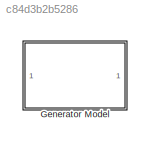
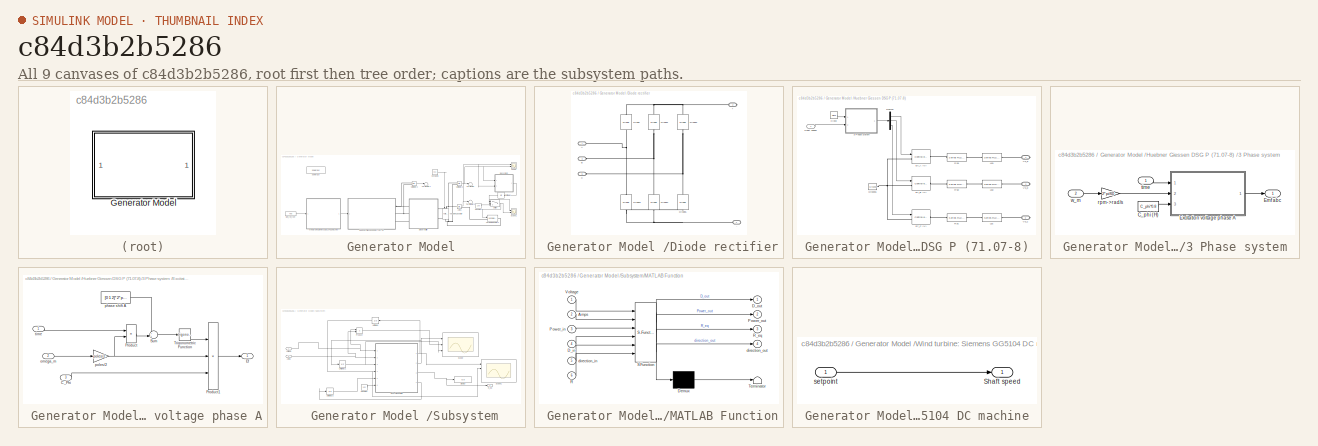
[diagram: thumbnail index - all 9 canvases of the model, root first then tree order]
MODEL slx_c84d3b2b5286
KIND model
CONFIG AbsTol = auto
CONFIG EnableMultiTasking = on
CONFIG FixedStep = 1e-6
CONFIG InitFcn = Rs=0.42;                \nLs=0.96e-3;            \nC_phi=92.1952e-3;     \npoles=8;               \nRload=15;
CONFIG MaxStep = 1e-6
CONFIG MinStep = auto
CONFIG RelTol = 1e-5
CONFIG SampleTimeConstraint = Unconstrained
CONFIG SolverName = ode45
CONFIG StartTime = 0.0
CONFIG StopTime = 2
WORKSPACE source: mxarray member
WORKSPACE D: Simulink.Parameter (value not decoded)
WORKSPACE Power_previous: Simulink.Parameter (value not decoded)
WORKSPACE R_eq: Simulink.Parameter (value not decoded)
WORKSPACE direction: Simulink.Parameter (value not decoded)
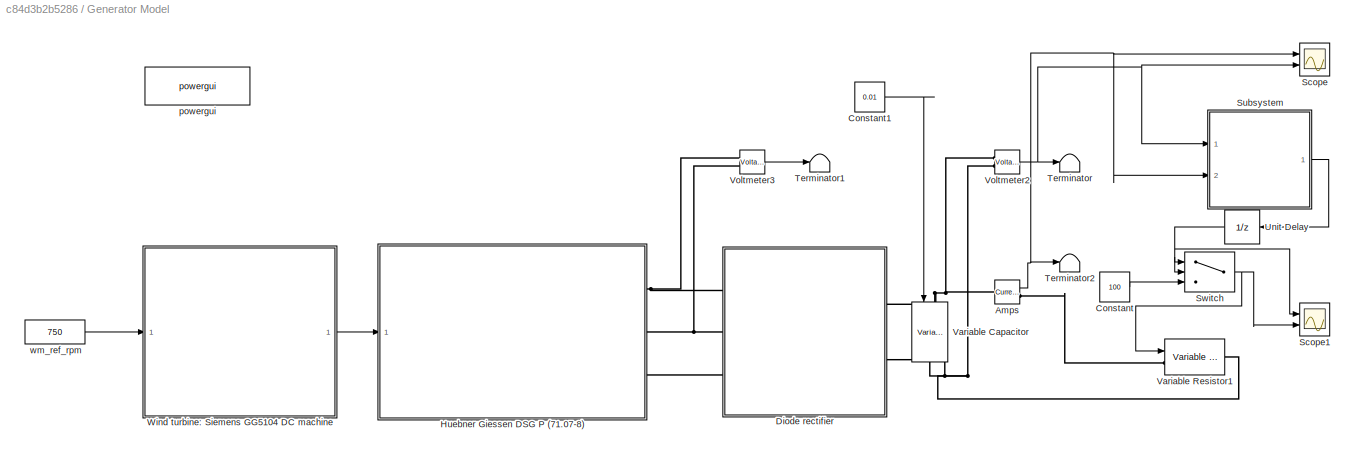
BLOCK [SubSystem]  Generator Model 
  Ports = []
BLOCK [Reference]  Generator Model /Amps  REF=spsCurrentMeasurementLib/Current Measurement
  Ports = [0, 1, 0, 0, 0, 1, 1]
  SourceBlock = spsCurrentMeasurementLib/Current Measurement
  SourceType = Current Measurement
  UserDataPersistent = on
BLOCK [Constant]  Generator Model /Constant
  Value = 100
BLOCK [Constant]  Generator Model /Constant1
  Value = 0.01
BLOCK [SubSystem]  Generator Model /Diode rectifier
  Ports = [0, 0, 0, 0, 0, 3, 2]
BLOCK [PMIOPort]  Generator Model /Diode rectifier/+
  NameLocation = top
  Port = 2
  Side = Right
BLOCK [PMIOPort]  Generator Model /Diode rectifier/-
  NameLocation = top
  Port = 4
  Side = Right
BLOCK [PMIOPort]  Generator Model /Diode rectifier/A
  Side = Left
BLOCK [PMIOPort]  Generator Model /Diode rectifier/B
  Port = 3
  Side = Left
BLOCK [PMIOPort]  Generator Model /Diode rectifier/C
  Port = 5
  Side = Left
BLOCK [Reference]  Generator Model /Diode rectifier/Diode  REF=spsDiodeLib/Diode
  NameLocation = right
  Ports = [0, 0, 0, 0, 0, 1, 1]
  SourceBlock = spsDiodeLib/Diode
  SourceType = Diode
BLOCK [Reference]  Generator Model /Diode rectifier/Diode1  REF=spsDiodeLib/Diode
  NameLocation = right
  Ports = [0, 0, 0, 0, 0, 1, 1]
  SourceBlock = spsDiodeLib/Diode
  SourceType = Diode
BLOCK [Reference]  Generator Model /Diode rectifier/Diode2  REF=spsDiodeLib/Diode
  NameLocation = right
  Ports = [0, 0, 0, 0, 0, 1, 1]
  SourceBlock = spsDiodeLib/Diode
  SourceType = Diode
BLOCK [Reference]  Generator Model /Diode rectifier/Diode3  REF=spsDiodeLib/Diode
  NameLocation = right
  Ports = [0, 0, 0, 0, 0, 1, 1]
  SourceBlock = spsDiodeLib/Diode
  SourceType = Diode
BLOCK [Reference]  Generator Model /Diode rectifier/Diode4  REF=spsDiodeLib/Diode
  NameLocation = right
  Ports = [0, 0, 0, 0, 0, 1, 1]
  SourceBlock = spsDiodeLib/Diode
  SourceType = Diode
BLOCK [Reference]  Generator Model /Diode rectifier/Diode5  REF=spsDiodeLib/Diode
  NameLocation = right
  Ports = [0, 0, 0, 0, 0, 1, 1]
  SourceBlock = spsDiodeLib/Diode
  SourceType = Diode
BLOCK [SubSystem]  Generator Model /Huebner Giessen DSG P (71.07-8) 
  Ports = [1, 0, 0, 0, 0, 0, 3]
BLOCK [SubSystem]  Generator Model /Huebner Giessen DSG P (71.07-8) /3 Phase system 
  Ports = [2, 1]
BLOCK [Constant]  Generator Model /Huebner Giessen DSG P (71.07-8) /3 Phase system /C_phi (H)
  Value = C_phi*0.8
  VectorParams1D = off
BLOCK [Outport]  Generator Model /Huebner Giessen DSG P (71.07-8) /3 Phase system /Emf abc 
BLOCK [SubSystem]  Generator Model /Huebner Giessen DSG P (71.07-8) /3 Phase system /Excitation voltage phase A
  Ports = [3, 1]
BLOCK [Inport]  Generator Model /Huebner Giessen DSG P (71.07-8) /3 Phase system /Excitation voltage phase A/C_Phi
  Port = 3
BLOCK [Outport]  Generator Model /Huebner Giessen DSG P (71.07-8) /3 Phase system /Excitation voltage phase A/Ef
BLOCK [Product]  Generator Model /Huebner Giessen DSG P (71.07-8) /3 Phase system /Excitation voltage phase A/Product
  Ports = [2, 1]
  RndMeth = Zero
BLOCK [Product]  Generator Model /Huebner Giessen DSG P (71.07-8) /3 Phase system /Excitation voltage phase A/Product1
  Inputs = 3
  Ports = [3, 1]
  RndMeth = Zero
BLOCK [Sum]  Generator Model /Huebner Giessen DSG P (71.07-8) /3 Phase system /Excitation voltage phase A/Sum
  Inputs = ++|
  Ports = [2, 1]
BLOCK [Trigonometry]  Generator Model /Huebner Giessen DSG P (71.07-8) /3 Phase system /Excitation voltage phase A/Trigonometric Function
  Ports = [1, 1]
BLOCK [Inport]  Generator Model /Huebner Giessen DSG P (71.07-8) /3 Phase system /Excitation voltage phase A/omega_m
  Port = 2
BLOCK [Constant]  Generator Model /Huebner Giessen DSG P (71.07-8) /3 Phase system /Excitation voltage phase A/phase shift A
  Value = [0 1 2]*2*pi/3
BLOCK [Gain]  Generator Model /Huebner Giessen DSG P (71.07-8) /3 Phase system /Excitation voltage phase A/poles//2
  Gain = poles/2
BLOCK [Inport]  Generator Model /Huebner Giessen DSG P (71.07-8) /3 Phase system /Excitation voltage phase A/time
BLOCK [Gain]  Generator Model /Huebner Giessen DSG P (71.07-8) /3 Phase system /rpm->rad//s
  Gain = 2*pi/60
BLOCK [Inport]  Generator Model /Huebner Giessen DSG P (71.07-8) /3 Phase system /time
BLOCK [Inport]  Generator Model /Huebner Giessen DSG P (71.07-8) /3 Phase system /w_m
  Port = 2
BLOCK [Clock]  Generator Model /Huebner Giessen DSG P (71.07-8) /Clock
BLOCK [Demux]  Generator Model /Huebner Giessen DSG P (71.07-8) /Demux
  Outputs = 3
  Ports = [1, 3]
BLOCK [Reference]  Generator Model /Huebner Giessen DSG P (71.07-8) /Ef_A (V)  REF=spsControlledVoltageSourceLib/Controlled Voltage Source
  Ports = [1, 0, 0, 0, 0, 1, 1]
  SourceBlock = spsControlledVoltageSourceLib/Controlled Voltage Source
  SourceType = Controlled Voltage Source
BLOCK [Reference]  Generator Model /Huebner Giessen DSG P (71.07-8) /Ef_B (V)  REF=spsControlledVoltageSourceLib/Controlled Voltage Source
  Ports = [1, 0, 0, 0, 0, 1, 1]
  SourceBlock = spsControlledVoltageSourceLib/Controlled Voltage Source
  SourceType = Controlled Voltage Source
BLOCK [Reference]  Generator Model /Huebner Giessen DSG P (71.07-8) /Ef_C (V)  REF=spsControlledVoltageSourceLib/Controlled Voltage Source
  Ports = [1, 0, 0, 0, 0, 1, 1]
  SourceBlock = spsControlledVoltageSourceLib/Controlled Voltage Source
  SourceType = Controlled Voltage Source
BLOCK [Reference]  Generator Model /Huebner Giessen DSG P (71.07-8) /Ground1  REF=spsGroundLib/Ground
  Ports = [0, 0, 0, 0, 0, 1]
  SourceBlock = spsGroundLib/Ground
  SourceType = Ground
BLOCK [Reference]  Generator Model /Huebner Giessen DSG P (71.07-8) /Lsa  REF=spsSeriesRLCBranchLib/Series RLC Branch
  Ports = [0, 0, 0, 0, 0, 1, 1]
  SourceBlock = spsSeriesRLCBranchLib/Series RLC Branch
  SourceType = Series RLC Branch
BLOCK [Reference]  Generator Model /Huebner Giessen DSG P (71.07-8) /Lsb  REF=spsSeriesRLCBranchLib/Series RLC Branch
  Ports = [0, 0, 0, 0, 0, 1, 1]
  SourceBlock = spsSeriesRLCBranchLib/Series RLC Branch
  SourceType = Series RLC Branch
BLOCK [Reference]  Generator Model /Huebner Giessen DSG P (71.07-8) /Lsc  REF=spsSeriesRLCBranchLib/Series RLC Branch
  Ports = [0, 0, 0, 0, 0, 1, 1]
  SourceBlock = spsSeriesRLCBranchLib/Series RLC Branch
  SourceType = Series RLC Branch
BLOCK [Reference]  Generator Model /Huebner Giessen DSG P (71.07-8) /Rsa  REF=spsSeriesRLCBranchLib/Series RLC Branch
  Ports = [0, 0, 0, 0, 0, 1, 1]
  SourceBlock = spsSeriesRLCBranchLib/Series RLC Branch
  SourceType = Series RLC Branch
BLOCK [Reference]  Generator Model /Huebner Giessen DSG P (71.07-8) /Rsb  REF=spsSeriesRLCBranchLib/Series RLC Branch
  Ports = [0, 0, 0, 0, 0, 1, 1]
  SourceBlock = spsSeriesRLCBranchLib/Series RLC Branch
  SourceType = Series RLC Branch
BLOCK [Reference]  Generator Model /Huebner Giessen DSG P (71.07-8) /Rsc  REF=spsSeriesRLCBranchLib/Series RLC Branch
  Ports = [0, 0, 0, 0, 0, 1, 1]
  SourceBlock = spsSeriesRLCBranchLib/Series RLC Branch
  SourceType = Series RLC Branch
BLOCK [Inport]  Generator Model /Huebner Giessen DSG P (71.07-8) /Shaft speed
BLOCK [PMIOPort]  Generator Model /Huebner Giessen DSG P (71.07-8) /Vs_a
  Side = Right
BLOCK [PMIOPort]  Generator Model /Huebner Giessen DSG P (71.07-8) /Vs_b
  Port = 2
  Side = Right
BLOCK [PMIOPort]  Generator Model /Huebner Giessen DSG P (71.07-8) /Vs_c
  Port = 3
  Side = Right
BLOCK [Scope]  Generator Model /Scope
  Floating = off
  NumInputPorts = 2
  Ports = [2]
  ScopeSpecificationString = Simulink.scopes.TimeScopeBlockCfg('CurrentConfiguration', extmgr.ConfigurationSet(extmgr.Configuration('Core','General UI',true),extmgr.Configuration('Core','Source UI',true),extmgr.Configuration('Sources','WiredSimulink',true),extmgr.Configuration('Visuals','Time Domain',true,'SerializedDisplays',{struct('MinYLimReal','-4.56236','MaxYLimReal','41.06125','YLabelReal','','MinYLimMag','0.00000','Max...<+1367ch>
BLOCK [Scope]  Generator Model /Scope1
  Floating = off
  NumInputPorts = 2
  Ports = [2]
  ScopeSpecificationString = Simulink.scopes.TimeScopeBlockCfg('CurrentConfiguration', extmgr.ConfigurationSet(extmgr.Configuration('Core','General UI',true),extmgr.Configuration('Core','Source UI',true),extmgr.Configuration('Sources','WiredSimulink',true),extmgr.Configuration('Visuals','Time Domain',true,'SerializedDisplays',{struct('MinYLimReal','-3.59637','MaxYLimReal','2.68855','YLabelReal','','MinYLimMag','0.00000','MaxY...<+1358ch>
BLOCK [SubSystem]  Generator Model /Subsystem
  Ports = [2, 1]
BLOCK [Inport]  Generator Model /Subsystem/Amps
  Port = 2
BLOCK [Constant]  Generator Model /Subsystem/Constant
  Value = 100
BLOCK [Display]  Generator Model /Subsystem/Display
  Decimation = 1
  Ports = [1]
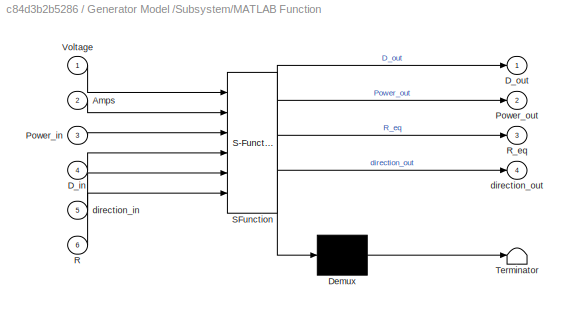
BLOCK [SubSystem]  Generator Model /Subsystem/MATLAB Function
  ErrorFcn = Stateflow.Translate.translate
  PermitHierarchicalResolution = ExplicitOnly
  Ports = [6, 4]
  SFBlockType = MATLAB Function
  SystemSampleTime = 0.01
  TreatAsAtomicUnit = on
BLOCK [Demux]  Generator Model /Subsystem/MATLAB Function/ Demux 
  Outputs = 1
  Ports = [1, 1]
BLOCK [S-Function]  Generator Model /Subsystem/MATLAB Function/ SFunction 
  EnableBusSupport = on
  FunctionName = sf_sfun
  PortCounts = [6 5]
  Ports = [6, 5]
  SFcnIsStateOwnerBlock = off
  SFunctionDeploymentMode = off
  Tag = Stateflow S-Function 2
BLOCK [Terminator]  Generator Model /Subsystem/MATLAB Function/ Terminator 
BLOCK [Inport]  Generator Model /Subsystem/MATLAB Function/Amps
  Port = 2
BLOCK [Inport]  Generator Model /Subsystem/MATLAB Function/D_in
  Port = 4
BLOCK [Outport]  Generator Model /Subsystem/MATLAB Function/D_out
BLOCK [Inport]  Generator Model /Subsystem/MATLAB Function/Power_in
  Port = 3
BLOCK [Outport]  Generator Model /Subsystem/MATLAB Function/Power_out
  Port = 2
BLOCK [Inport]  Generator Model /Subsystem/MATLAB Function/R
  Port = 6
BLOCK [Outport]  Generator Model /Subsystem/MATLAB Function/R_eq
  Port = 3
BLOCK [Inport]  Generator Model /Subsystem/MATLAB Function/Voltage
BLOCK [Inport]  Generator Model /Subsystem/MATLAB Function/direction_in
  Port = 5
BLOCK [Outport]  Generator Model /Subsystem/MATLAB Function/direction_out
  Port = 4
BLOCK [Product]  Generator Model /Subsystem/Product
  Ports = [2, 1]
BLOCK [Outport]  Generator Model /Subsystem/R_eq
BLOCK [Scope]  Generator Model /Subsystem/Scope
  Floating = off
  NumInputPorts = 3
  Ports = [3]
  ScopeSpecificationString = Simulink.scopes.TimeScopeBlockCfg('CurrentConfiguration', extmgr.ConfigurationSet(extmgr.Configuration('Core','General UI',true),extmgr.Configuration('Core','Source UI',true),extmgr.Configuration('Sources','WiredSimulink',true,'DataLoggingVariableName','ScopeData1'),extmgr.Configuration('Visuals','Time Domain',true,'SerializedDisplays',{struct('MinYLimReal','-52.45852','MaxYLimReal','472.12667','Y...<+1492ch>
BLOCK [Scope]  Generator Model /Subsystem/Scope1
  Floating = off
  NumInputPorts = 4
  Ports = [4]
  ScopeSpecificationString = Simulink.scopes.TimeScopeBlockCfg('CurrentConfiguration', extmgr.ConfigurationSet(extmgr.Configuration('Core','General UI',true),extmgr.Configuration('Core','Source UI',true),extmgr.Configuration('Sources','WiredSimulink',true,'DataLoggingVariableName','ScopeData2'),extmgr.Configuration('Visuals','Time Domain',true,'SerializedDisplays',{struct('MinYLimReal','-0.12625','MaxYLimReal','1.13625','YLab...<+1634ch>
BLOCK [UnitDelay]  Generator Model /Subsystem/Unit Delay
  HasFrameUpgradeWarning = on
  InitialCondition = 1
  NameLocation = top
  SampleTime = 0.001
BLOCK [UnitDelay]  Generator Model /Subsystem/Unit Delay1
  HasFrameUpgradeWarning = on
  SampleTime = 0.001
BLOCK [UnitDelay]  Generator Model /Subsystem/Unit Delay2
  HasFrameUpgradeWarning = on
  SampleTime = 0.001
BLOCK [Inport]  Generator Model /Subsystem/Voltage
BLOCK [Switch]  Generator Model /Switch
  Criteria = u2 > Threshold
  InputSameDT = off
  SaturateOnIntegerOverflow = off
BLOCK [Terminator]  Generator Model /Terminator
BLOCK [Terminator]  Generator Model /Terminator1
BLOCK [Terminator]  Generator Model /Terminator2
BLOCK [UnitDelay]  Generator Model /Unit Delay
  HasFrameUpgradeWarning = on
  NameLocation = top
  SampleTime = 0.01
BLOCK [Reference]  Generator Model /Variable Capacitor  REF=spsVariableCapacitorLib/Variable Capacitor
  NameLocation = left
  Ports = [1, 0, 0, 0, 0, 1, 1]
  SourceBlock = spsVariableCapacitorLib/Variable Capacitor
  SourceType = Variable Capacitor
BLOCK [Reference]  Generator Model /Variable Resistor1  REF=spsVariableResistorLib/Variable Resistor
  Ports = [1, 0, 0, 0, 0, 1, 1]
  SourceBlock = spsVariableResistorLib/Variable Resistor
  SourceType = Variable Resistor
BLOCK [Reference]  Generator Model /Voltmeter2  REF=spsVoltageMeasurementLib/Voltage Measurement
  Ports = [0, 1, 0, 0, 0, 2]
  SourceBlock = spsVoltageMeasurementLib/Voltage Measurement
  SourceType = Voltage Measurement
  UserDataPersistent = on
BLOCK [Reference]  Generator Model /Voltmeter3  REF=spsVoltageMeasurementLib/Voltage Measurement
  Ports = [0, 1, 0, 0, 0, 2]
  SourceBlock = spsVoltageMeasurementLib/Voltage Measurement
  SourceType = Voltage Measurement
  UserDataPersistent = on
BLOCK [SubSystem]  Generator Model /Wind turbine: Siemens GG5104 DC machine 
  Ports = [1, 1]
BLOCK [Outport]  Generator Model /Wind turbine: Siemens GG5104 DC machine /Shaft speed
BLOCK [Inport]  Generator Model /Wind turbine: Siemens GG5104 DC machine /setpoint
BLOCK [Reference]  Generator Model /powergui  REF=spspowerguiLib/powergui
  Ports = []
  Priority = 1
  SourceBlock = spspowerguiLib/powergui
  SourceType = PSB option menu block
BLOCK [Constant]  Generator Model /wm_ref_rpm
  Value = 750
NET  Generator Model /Amps:1 ->  Generator Model /Scope:1,  Generator Model /Subsystem:2,  Generator Model /Terminator2:1
LINE  Generator Model /Constant1:1 ->  Generator Model /Variable Capacitor:1
LINE  Generator Model /Constant:1 ->  Generator Model /Switch:3
LINE  Generator Model /Huebner Giessen DSG P (71.07-8) /3 Phase system /C_phi (H):1 ->  Generator Model /Huebner Giessen DSG P (71.07-8) /3 Phase system /Excitation voltage phase A:3
LINE  Generator Model /Huebner Giessen DSG P (71.07-8) /3 Phase system /Excitation voltage phase A/C_Phi:1 ->  Generator Model /Huebner Giessen DSG P (71.07-8) /3 Phase system /Excitation voltage phase A/Product1:3
LINE  Generator Model /Huebner Giessen DSG P (71.07-8) /3 Phase system /Excitation voltage phase A/Product1:1 ->  Generator Model /Huebner Giessen DSG P (71.07-8) /3 Phase system /Excitation voltage phase A/Ef:1
LINE  Generator Model /Huebner Giessen DSG P (71.07-8) /3 Phase system /Excitation voltage phase A/Product:1 ->  Generator Model /Huebner Giessen DSG P (71.07-8) /3 Phase system /Excitation voltage phase A/Sum:2
LINE  Generator Model /Huebner Giessen DSG P (71.07-8) /3 Phase system /Excitation voltage phase A/Sum:1 ->  Generator Model /Huebner Giessen DSG P (71.07-8) /3 Phase system /Excitation voltage phase A/Trigonometric Function:1
LINE  Generator Model /Huebner Giessen DSG P (71.07-8) /3 Phase system /Excitation voltage phase A/Trigonometric Function:1 ->  Generator Model /Huebner Giessen DSG P (71.07-8) /3 Phase system /Excitation voltage phase A/Product1:1
LINE  Generator Model /Huebner Giessen DSG P (71.07-8) /3 Phase system /Excitation voltage phase A/omega_m:1 ->  Generator Model /Huebner Giessen DSG P (71.07-8) /3 Phase system /Excitation voltage phase A/poles//2:1
LINE  Generator Model /Huebner Giessen DSG P (71.07-8) /3 Phase system /Excitation voltage phase A/phase shift A:1 ->  Generator Model /Huebner Giessen DSG P (71.07-8) /3 Phase system /Excitation voltage phase A/Sum:1
NET  Generator Model /Huebner Giessen DSG P (71.07-8) /3 Phase system /Excitation voltage phase A/poles//2:1 ->  Generator Model /Huebner Giessen DSG P (71.07-8) /3 Phase system /Excitation voltage phase A/Product1:2,  Generator Model /Huebner Giessen DSG P (71.07-8) /3 Phase system /Excitation voltage phase A/Product:2
LINE  Generator Model /Huebner Giessen DSG P (71.07-8) /3 Phase system /Excitation voltage phase A/time:1 ->  Generator Model /Huebner Giessen DSG P (71.07-8) /3 Phase system /Excitation voltage phase A/Product:1
LINE  Generator Model /Huebner Giessen DSG P (71.07-8) /3 Phase system /Excitation voltage phase A:1 ->  Generator Model /Huebner Giessen DSG P (71.07-8) /3 Phase system /Emf abc :1
LINE  Generator Model /Huebner Giessen DSG P (71.07-8) /3 Phase system /rpm->rad//s:1 ->  Generator Model /Huebner Giessen DSG P (71.07-8) /3 Phase system /Excitation voltage phase A:2
LINE  Generator Model /Huebner Giessen DSG P (71.07-8) /3 Phase system /time:1 ->  Generator Model /Huebner Giessen DSG P (71.07-8) /3 Phase system /Excitation voltage phase A:1
LINE  Generator Model /Huebner Giessen DSG P (71.07-8) /3 Phase system /w_m:1 ->  Generator Model /Huebner Giessen DSG P (71.07-8) /3 Phase system /rpm->rad//s:1
LINE  Generator Model /Huebner Giessen DSG P (71.07-8) /3 Phase system :1 ->  Generator Model /Huebner Giessen DSG P (71.07-8) /Demux:1
LINE  Generator Model /Huebner Giessen DSG P (71.07-8) /Clock:1 ->  Generator Model /Huebner Giessen DSG P (71.07-8) /3 Phase system :1
LINE  Generator Model /Huebner Giessen DSG P (71.07-8) /Demux:1 ->  Generator Model /Huebner Giessen DSG P (71.07-8) /Ef_A (V):1
LINE  Generator Model /Huebner Giessen DSG P (71.07-8) /Demux:2 ->  Generator Model /Huebner Giessen DSG P (71.07-8) /Ef_B (V):1
LINE  Generator Model /Huebner Giessen DSG P (71.07-8) /Demux:3 ->  Generator Model /Huebner Giessen DSG P (71.07-8) /Ef_C (V):1
LINE  Generator Model /Huebner Giessen DSG P (71.07-8) /Shaft speed:1 ->  Generator Model /Huebner Giessen DSG P (71.07-8) /3 Phase system :2
NET  Generator Model /Subsystem/Amps:1 ->  Generator Model /Subsystem/MATLAB Function:2,  Generator Model /Subsystem/Product:2
LINE  Generator Model /Subsystem/Constant:1 ->  Generator Model /Subsystem/MATLAB Function:6
NET  Generator Model /Subsystem/MATLAB Function:1 ->  Generator Model /Subsystem/Scope1:1,  Generator Model /Subsystem/Unit Delay:1
NET  Generator Model /Subsystem/MATLAB Function:2 ->  Generator Model /Subsystem/Scope:1,  Generator Model /Subsystem/Unit Delay1:1
NET  Generator Model /Subsystem/MATLAB Function:3 ->  Generator Model /Subsystem/Display:1,  Generator Model /Subsystem/R_eq:1
LINE  Generator Model /Subsystem/MATLAB Function:4 ->  Generator Model /Subsystem/Unit Delay2:1
LINE  Generator Model /Subsystem/Product:1 ->  Generator Model /Subsystem/Scope:2
NET  Generator Model /Subsystem/Unit Delay1:1 ->  Generator Model /Subsystem/MATLAB Function:3,  Generator Model /Subsystem/Scope:3
LINE  Generator Model /Subsystem/Unit Delay2:1 ->  Generator Model /Subsystem/MATLAB Function:5
NET  Generator Model /Subsystem/Unit Delay:1 ->  Generator Model /Subsystem/MATLAB Function:4,  Generator Model /Subsystem/Scope1:2
NET  Generator Model /Subsystem/Voltage:1 ->  Generator Model /Subsystem/MATLAB Function:1,  Generator Model /Subsystem/Product:1
LINE  Generator Model /Subsystem:1 ->  Generator Model /Unit Delay:1
NET  Generator Model /Switch:1 ->  Generator Model /Scope1:2,  Generator Model /Variable Resistor1:1
NET  Generator Model /Unit Delay:1 ->  Generator Model /Scope1:1,  Generator Model /Switch:1,  Generator Model /Switch:2
NET  Generator Model /Voltmeter2:1 ->  Generator Model /Scope:2,  Generator Model /Subsystem:1,  Generator Model /Terminator:1
LINE  Generator Model /Voltmeter3:1 ->  Generator Model /Terminator1:1
LINE  Generator Model /Wind turbine: Siemens GG5104 DC machine /setpoint:1 ->  Generator Model /Wind turbine: Siemens GG5104 DC machine /Shaft speed:1
LINE  Generator Model /Wind turbine: Siemens GG5104 DC machine :1 ->  Generator Model /Huebner Giessen DSG P (71.07-8) :1
LINE  Generator Model /wm_ref_rpm:1 ->  Generator Model /Wind turbine: Siemens GG5104 DC machine :1
PNET net1:  Generator Model /Amps:LConn1 --  Generator Model /Diode rectifier:RConn1 --  Generator Model /Variable Capacitor:LConn1 --  Generator Model /Voltmeter2:LConn1
PLINE  Generator Model /Amps:RConn1 --  Generator Model /Variable Resistor1:LConn1
PNET net2:  Generator Model /Diode rectifier/+:RConn1 --  Generator Model /Diode rectifier/Diode1:RConn1 --  Generator Model /Diode rectifier/Diode2:RConn1 --  Generator Model /Diode rectifier/Diode:RConn1
PNET net3:  Generator Model /Diode rectifier/-:RConn1 --  Generator Model /Diode rectifier/Diode3:LConn1 --  Generator Model /Diode rectifier/Diode4:LConn1 --  Generator Model /Diode rectifier/Diode5:LConn1
PNET net4:  Generator Model /Diode rectifier/A:RConn1 --  Generator Model /Diode rectifier/Diode3:RConn1 --  Generator Model /Diode rectifier/Diode:LConn1
PNET net5:  Generator Model /Diode rectifier/B:RConn1 --  Generator Model /Diode rectifier/Diode1:LConn1 --  Generator Model /Diode rectifier/Diode4:RConn1
PNET net6:  Generator Model /Diode rectifier/C:RConn1 --  Generator Model /Diode rectifier/Diode2:LConn1 --  Generator Model /Diode rectifier/Diode5:RConn1
PNET net7:  Generator Model /Diode rectifier:LConn1 --  Generator Model /Huebner Giessen DSG P (71.07-8) :RConn1 --  Generator Model /Voltmeter3:LConn1
PNET net8:  Generator Model /Diode rectifier:LConn2 --  Generator Model /Huebner Giessen DSG P (71.07-8) :RConn2 --  Generator Model /Voltmeter3:LConn2
PLINE  Generator Model /Diode rectifier:LConn3 --  Generator Model /Huebner Giessen DSG P (71.07-8) :RConn3
PNET net9:  Generator Model /Diode rectifier:RConn2 --  Generator Model /Variable Capacitor:RConn1 --  Generator Model /Variable Resistor1:RConn1 --  Generator Model /Voltmeter2:LConn2
PNET net10:  Generator Model /Huebner Giessen DSG P (71.07-8) /Ef_A (V):LConn1 --  Generator Model /Huebner Giessen DSG P (71.07-8) /Ef_B (V):LConn1 --  Generator Model /Huebner Giessen DSG P (71.07-8) /Ef_C (V):LConn1 --  Generator Model /Huebner Giessen DSG P (71.07-8) /Ground1:LConn1
PLINE  Generator Model /Huebner Giessen DSG P (71.07-8) /Ef_A (V):RConn1 --  Generator Model /Huebner Giessen DSG P (71.07-8) /Rsa:LConn1
PLINE  Generator Model /Huebner Giessen DSG P (71.07-8) /Ef_B (V):RConn1 --  Generator Model /Huebner Giessen DSG P (71.07-8) /Rsb:LConn1
PLINE  Generator Model /Huebner Giessen DSG P (71.07-8) /Ef_C (V):RConn1 --  Generator Model /Huebner Giessen DSG P (71.07-8) /Rsc:LConn1
PLINE  Generator Model /Huebner Giessen DSG P (71.07-8) /Lsa:LConn1 --  Generator Model /Huebner Giessen DSG P (71.07-8) /Rsa:RConn1
PLINE  Generator Model /Huebner Giessen DSG P (71.07-8) /Lsa:RConn1 --  Generator Model /Huebner Giessen DSG P (71.07-8) /Vs_a:RConn1
PLINE  Generator Model /Huebner Giessen DSG P (71.07-8) /Lsb:LConn1 --  Generator Model /Huebner Giessen DSG P (71.07-8) /Rsb:RConn1
PLINE  Generator Model /Huebner Giessen DSG P (71.07-8) /Lsb:RConn1 --  Generator Model /Huebner Giessen DSG P (71.07-8) /Vs_b:RConn1
PLINE  Generator Model /Huebner Giessen DSG P (71.07-8) /Lsc:LConn1 --  Generator Model /Huebner Giessen DSG P (71.07-8) /Rsc:RConn1
PLINE  Generator Model /Huebner Giessen DSG P (71.07-8) /Lsc:RConn1 --  Generator Model /Huebner Giessen DSG P (71.07-8) /Vs_c:RConn1
note: NET lines group one-source signal fan-out (src -> all destinations, sorted); 1:1 wires keep LINE; PNET lines group multi-terminal physical nets as a canonical sorted terminal list (undirected conserving connections); 2-terminal nets keep the pairwise PLINE form
CHART  Generator Model

/Subsystem/MATLAB Function states=1 transitions=1
  STATE_LABEL 'eML_blk_kernel()'
  STATE_LABEL 'SCRIPT:\nfunction [D_out, Power_out, R_eq, direction_out] = fcn(Voltage, Amps, Power_in, D_in, direction_in, R)\n\nPower = Voltage * Amps;\n\nif Power < Power_in\n    if direction_in == 1\n        direction = 0;\n    else\n        direction = 1;\n    end\n    %direction = ~direction_in;\nelse \n    direction = direction_in;\nend\n\nD = D_in + (0.01 * direction) - (0.01 * (1 - direction));\n\nR_eq = D^2 * R;\nPower_o...<+49ch>'
CHART  states=0 transitions=0
